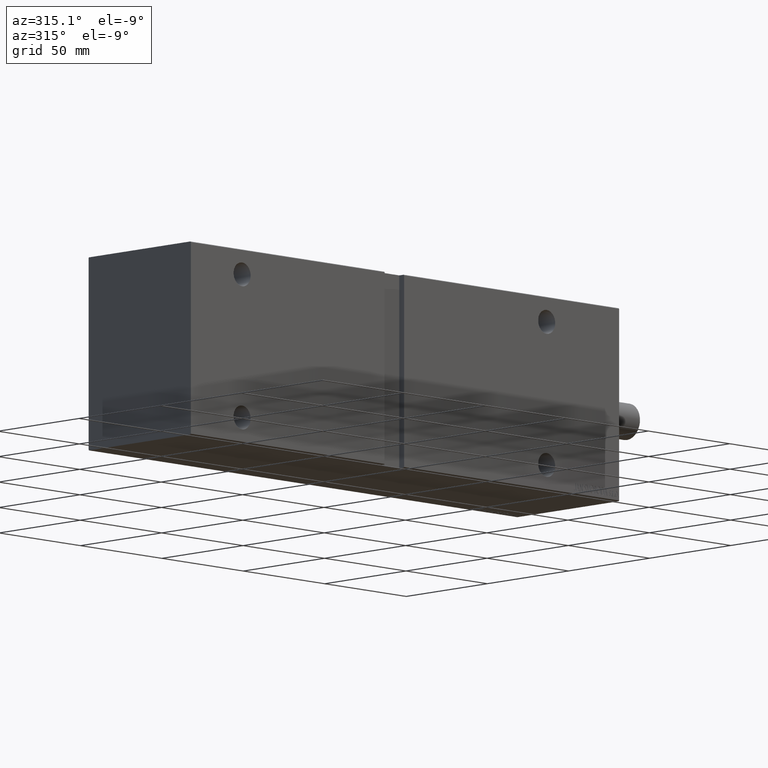
[diagram: clean part render]
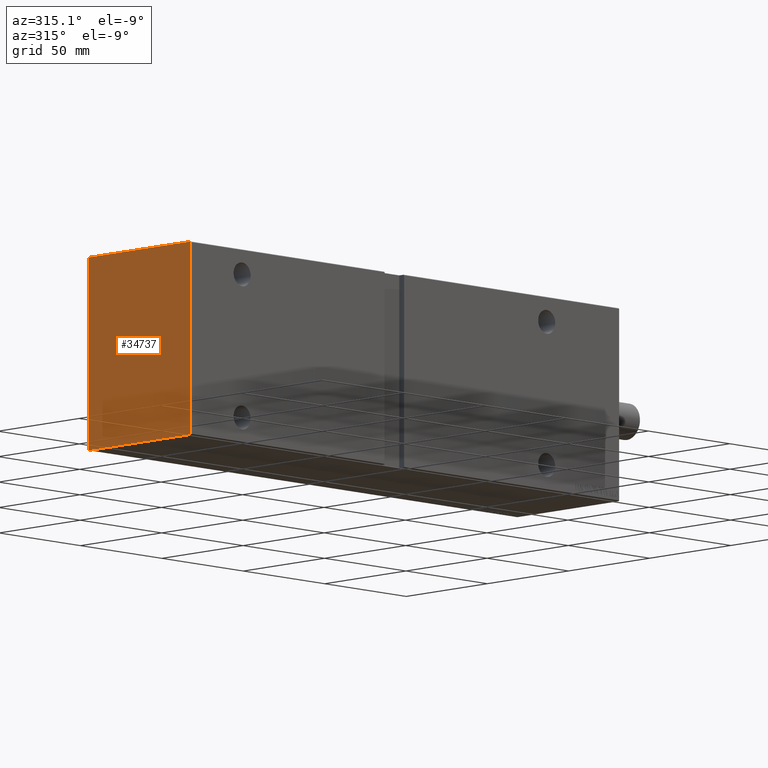
[diagram: same view with one face highlighted and labeled with its STEP entity id]
A machine part, auxiliary view. The second image highlights one B-rep face of the part: STEP entity #34737.
In plain terms, the highlighted planar face has unit normal (-1, 0, 0).
Its self-contained STEP definition (entity closure, byte-faithful):
#156 = CARTESIAN_POINT ( 'NONE',  ( 263.0000000000000000, -31.19999999999999929, -42.50000000000000711 ) ) ;
#486 = VECTOR ( 'NONE', #9561, 1000.000000000000000 ) ;
#1200 = DIRECTION ( 'NONE',  ( -0.000000000000000000, -0.7071067811865884289, 0.7071067811865066055 ) ) ;
#2127 = ORIENTED_EDGE ( 'NONE', *, *, #16673, .T. ) ;
#2735 = DIRECTION ( 'NONE',  ( 0.000000000000000000, 1.000000000000000000, 0.000000000000000000 ) ) ;
#2736 = DIRECTION ( 'NONE',  ( 0.000000000000000000, 0.000000000000000000, -1.000000000000000000 ) ) ;
#2774 = EDGE_LOOP ( 'NONE', ( #6897, #12277, #12924, #7797, #2127, #14288, #34761, #11341 ) ) ;
#3165 = VERTEX_POINT ( 'NONE', #156 ) ;
#4494 = CARTESIAN_POINT ( 'NONE',  ( 263.0000000000000000, 31.50000000000000000, 42.19999999999998863 ) ) ;
#4813 = CARTESIAN_POINT ( 'NONE',  ( 263.0000000000000000, 31.50000000000001421, -42.20000000000001705 ) ) ;
#5227 = DIRECTION ( 'NONE',  ( 0.000000000000000000, 0.000000000000000000, -1.000000000000000000 ) ) ;
#5876 = CARTESIAN_POINT ( 'NONE',  ( 263.0000000000000000, -31.49999999999999289, 42.49999999999998579 ) ) ;
#6443 = CARTESIAN_POINT ( 'NONE',  ( 263.0000000000000000, -31.49999999999999289, 42.19999999999993889 ) ) ;
#6897 = ORIENTED_EDGE ( 'NONE', *, *, #20672, .T. ) ;
#7070 = VECTOR ( 'NONE', #20496, 1000.000000000000000 ) ;
#7336 = EDGE_CURVE ( 'NONE', #22036, #3165, #18495, .T. ) ;
#7616 = CARTESIAN_POINT ( 'NONE',  ( 263.0000000000000000, 36.84999999999817533, 36.85000000000243858 ) ) ;
#7711 = VECTOR ( 'NONE', #40614, 1000.000000000000114 ) ;
#7797 = ORIENTED_EDGE ( 'NONE', *, *, #20003, .T. ) ;
#9561 = DIRECTION ( 'NONE',  ( 0.000000000000000000, -1.000000000000000000, -2.202823461557850341E-16 ) ) ;
#10013 = FACE_OUTER_BOUND ( 'NONE', #2774, .T. ) ;
#10221 = CARTESIAN_POINT ( 'NONE',  ( 263.0000000000000000, 31.50000000000000000, 42.50000000000000000 ) ) ;
#10303 = VECTOR ( 'NONE', #5227, 1000.000000000000000 ) ;
#11341 = ORIENTED_EDGE ( 'NONE', *, *, #7336, .T. ) ;
#12277 = ORIENTED_EDGE ( 'NONE', *, *, #21877, .T. ) ;
#12924 = ORIENTED_EDGE ( 'NONE', *, *, #29843, .T. ) ;
#13411 = VERTEX_POINT ( 'NONE', #42998 ) ;
#13559 = CARTESIAN_POINT ( 'NONE',  ( 263.0000000000000000, 0.000000000000000000, 0.000000000000000000 ) ) ;
#14288 = ORIENTED_EDGE ( 'NONE', *, *, #24083, .T. ) ;
#16673 = EDGE_CURVE ( 'NONE', #17708, #42934, #20632, .T. ) ;
#16726 = CARTESIAN_POINT ( 'NONE',  ( 263.0000000000000000, 31.50000000000001421, -42.50000000000000711 ) ) ;
#16858 = VECTOR ( 'NONE', #33168, 1000.000000000000000 ) ;
#17708 = VERTEX_POINT ( 'NONE', #23351 ) ;
#18495 = LINE ( 'NONE', #18709, #39606 ) ;
#18709 = CARTESIAN_POINT ( 'NONE',  ( 263.0000000000000000, -36.85000000000036380, -36.84999999999951115 ) ) ;
#20003 = EDGE_CURVE ( 'NONE', #23923, #17708, #34799, .T. ) ;
#20046 = LINE ( 'NONE', #16726, #7070 ) ;
#20496 = DIRECTION ( 'NONE',  ( 0.000000000000000000, -1.632680918566406300E-16, 1.000000000000000000 ) ) ;
#20632 = LINE ( 'NONE', #10221, #486 ) ;
#20672 = EDGE_CURVE ( 'NONE', #3165, #13411, #25305, .T. ) ;
#21877 = EDGE_CURVE ( 'NONE', #13411, #23354, #32942, .T. ) ;
#22036 = VERTEX_POINT ( 'NONE', #40880 ) ;
#23351 = CARTESIAN_POINT ( 'NONE',  ( 263.0000000000000000, 31.19999999999994955, 42.50000000000000000 ) ) ;
#23354 = VERTEX_POINT ( 'NONE', #4813 ) ;
#23923 = VERTEX_POINT ( 'NONE', #4494 ) ;
#24083 = EDGE_CURVE ( 'NONE', #42934, #28592, #30694, .T. ) ;
#25305 = LINE ( 'NONE', #28022, #30229 ) ;
#27054 = DIRECTION ( 'NONE',  ( 1.000000000000000000, 0.000000000000000000, 0.000000000000000000 ) ) ;
#27293 = AXIS2_PLACEMENT_3D ( 'NONE', #13559, #27054, #2736 ) ;
#27388 = CARTESIAN_POINT ( 'NONE',  ( 263.0000000000000000, -36.85000000000179199, 36.84999999999753584 ) ) ;
#28022 = CARTESIAN_POINT ( 'NONE',  ( 263.0000000000000000, -31.49999999999999289, -42.50000000000000711 ) ) ;
#28592 = VERTEX_POINT ( 'NONE', #6443 ) ;
#29843 = EDGE_CURVE ( 'NONE', #23354, #23923, #20046, .T. ) ;
#30229 = VECTOR ( 'NONE', #2735, 1000.000000000000000 ) ;
#30694 = LINE ( 'NONE', #27388, #7711 ) ;
#31971 = LINE ( 'NONE', #5876, #10303 ) ;
#32186 = DIRECTION ( 'NONE',  ( -0.000000000000000000, 0.7071067811865393571, -0.7071067811865556774 ) ) ;
#32942 = LINE ( 'NONE', #39140, #16858 ) ;
#33011 = PLANE ( 'NONE',  #27293 ) ;
#33168 = DIRECTION ( 'NONE',  ( -0.000000000000000000, 0.7071067811865556774, 0.7071067811865393571 ) ) ;
#33594 = EDGE_CURVE ( 'NONE', #28592, #22036, #31971, .T. ) ;
#34737 = ADVANCED_FACE ( 'NONE', ( #10013 ), #33011, .T. ) ;
#34761 = ORIENTED_EDGE ( 'NONE', *, *, #33594, .T. ) ;
#34799 = LINE ( 'NONE', #7616, #36522 ) ;
#36522 = VECTOR ( 'NONE', #1200, 1000.000000000000114 ) ;
#38404 = CARTESIAN_POINT ( 'NONE',  ( 263.0000000000000000, -31.19999999999997797, 42.49999999999998579 ) ) ;
#39140 = CARTESIAN_POINT ( 'NONE',  ( 263.0000000000000000, 36.84999999999964615, -36.85000000000049880 ) ) ;
#39606 = VECTOR ( 'NONE', #32186, 1000.000000000000000 ) ;
#40614 = DIRECTION ( 'NONE',  ( 0.000000000000000000, -0.7071067811865066055, -0.7071067811865884289 ) ) ;
#40880 = CARTESIAN_POINT ( 'NONE',  ( 263.0000000000000000, -31.49999999999999289, -42.20000000000000995 ) ) ;
#42934 = VERTEX_POINT ( 'NONE', #38404 ) ;
#42998 = CARTESIAN_POINT ( 'NONE',  ( 263.0000000000000000, 31.20000000000001350, -42.50000000000000711 ) ) ;